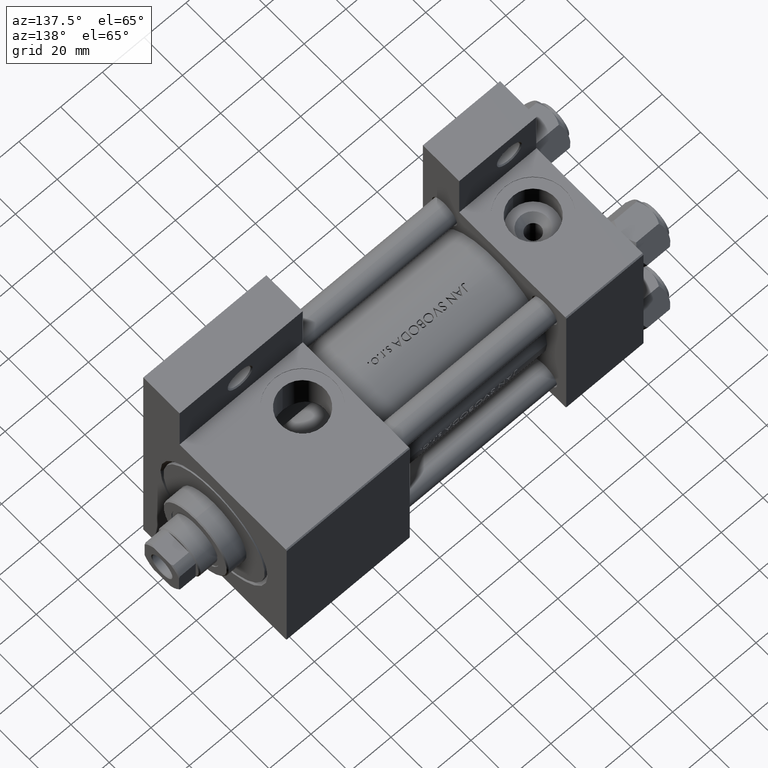
[diagram: clean part render]
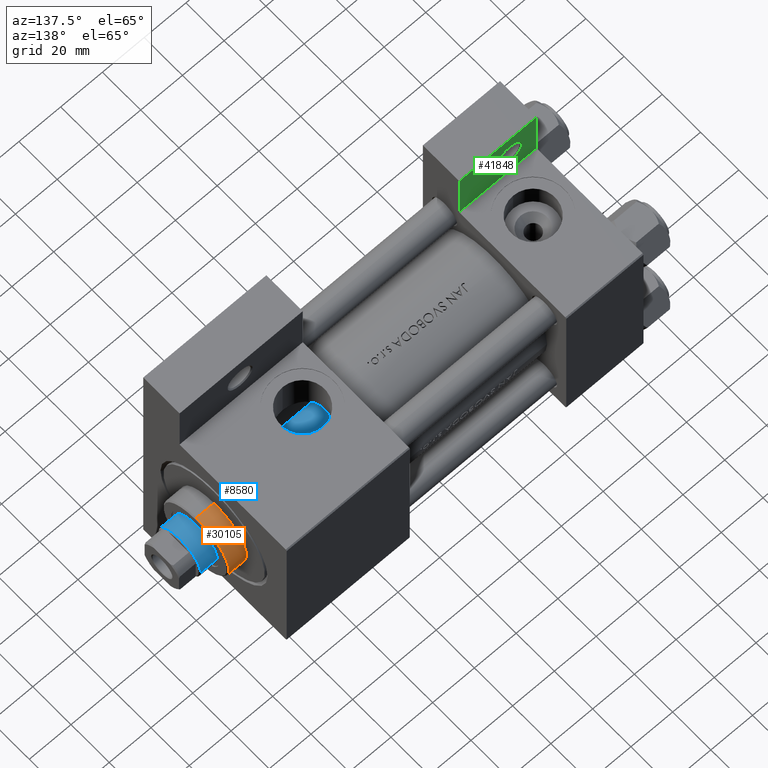
[diagram: same view with three faces highlighted in distinct colors, each labeled with its STEP entity id]
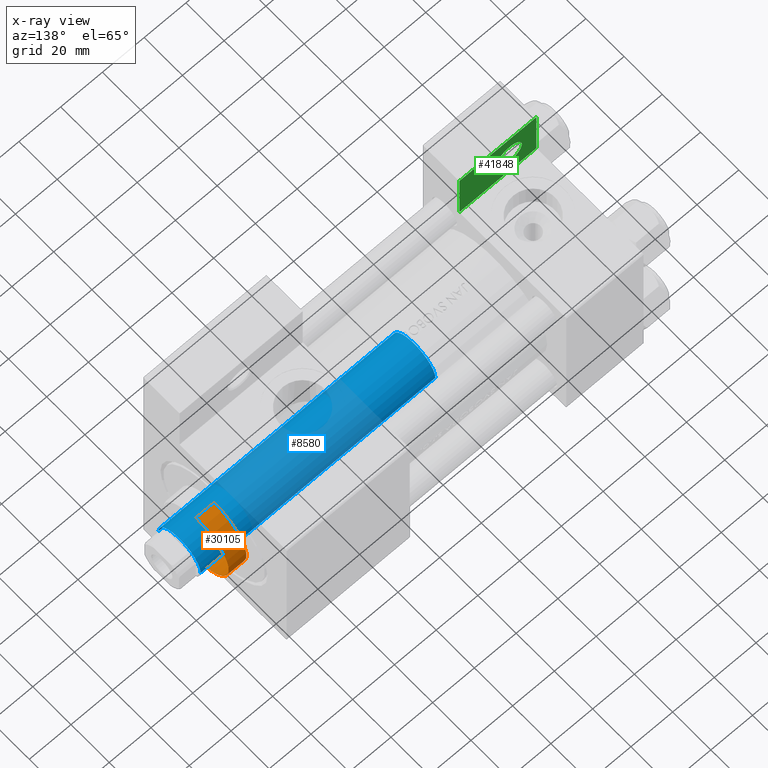
[diagram: x-ray of the same camera — body ghosted, the three highlighted faces saturated]
A machine part, auxiliary view with three faces highlighted in distinct colors.
The next image is the same camera in x-ray (body ghosted, the three faces saturated) — at least one of them is partly hidden behind the body in this view.
Their STEP definitions:

[orange] entity #30105 — the highlighted cylindrical surface (partial cylindrical patch) has radius 17 mm, axis along (-1, -0, 0).
#283 = DIRECTION ( 'NONE',  ( 1.000000000000000000, 0.000000000000000000, 0.000000000000000000 ) ) ;
#295 = DIRECTION ( 'NONE',  ( -0.000000000000000000, -0.000000000000000000, -1.000000000000000000 ) ) ;
#595 = VERTEX_POINT ( 'NONE', #13985 ) ;
#631 = LINE ( 'NONE', #42472, #10702 ) ;
#929 = ORIENTED_EDGE ( 'NONE', *, *, #1501, .T. ) ;
#1501 = EDGE_CURVE ( 'NONE', #595, #21624, #13839, .T. ) ;
#2821 = CYLINDRICAL_SURFACE ( 'NONE', #40736, 17.00000000000000000 ) ;
#3526 = AXIS2_PLACEMENT_3D ( 'NONE', #13238, #16213, #32124 ) ;
#3794 = DIRECTION ( 'NONE',  ( 0.000000000000000000, 0.000000000000000000, 1.000000000000000000 ) ) ;
#3804 = EDGE_CURVE ( 'NONE', #45799, #10827, #44907, .T. ) ;
#6409 = EDGE_LOOP ( 'NONE', ( #22939, #32596, #929, #41500 ) ) ;
#8034 = CARTESIAN_POINT ( 'NONE',  ( -17.00000000000000000, 0.000000000000000000, 37.19999999999999574 ) ) ;
#9676 = EDGE_CURVE ( 'NONE', #45799, #21624, #22557, .T. ) ;
#10702 = VECTOR ( 'NONE', #20069, 1000.000000000000000 ) ;
#10827 = VERTEX_POINT ( 'NONE', #14274 ) ;
#11050 = CARTESIAN_POINT ( 'NONE',  ( 0.000000000000000000, 0.000000000000000000, 37.69999999999999574 ) ) ;
#13238 = CARTESIAN_POINT ( 'NONE',  ( 0.000000000000000000, 0.000000000000000000, 37.19999999999999574 ) ) ;
#13839 = CIRCLE ( 'NONE', #17810, 17.00000000000000000 ) ;
#13985 = CARTESIAN_POINT ( 'NONE',  ( 17.00000000000000000, 2.081899558550500280E-15, 28.69999999999999929 ) ) ;
#14274 = CARTESIAN_POINT ( 'NONE',  ( 17.00000000000000000, 2.081899558550500280E-15, 37.19999999999999574 ) ) ;
#15345 = CARTESIAN_POINT ( 'NONE',  ( -17.00000000000000000, 0.000000000000000000, 37.69999999999999574 ) ) ;
#16213 = DIRECTION ( 'NONE',  ( 0.000000000000000000, 0.000000000000000000, -1.000000000000000000 ) ) ;
#17810 = AXIS2_PLACEMENT_3D ( 'NONE', #19238, #3794, #283 ) ;
#18517 = DIRECTION ( 'NONE',  ( -1.000000000000000000, 0.000000000000000000, 0.000000000000000000 ) ) ;
#19238 = CARTESIAN_POINT ( 'NONE',  ( 0.000000000000000000, 0.000000000000000000, 28.69999999999999929 ) ) ;
#20069 = DIRECTION ( 'NONE',  ( -0.000000000000000000, -0.000000000000000000, -1.000000000000000000 ) ) ;
#21517 = FACE_OUTER_BOUND ( 'NONE', #6409, .T. ) ;
#21624 = VERTEX_POINT ( 'NONE', #34362 ) ;
#22557 = LINE ( 'NONE', #15345, #41885 ) ;
#22939 = ORIENTED_EDGE ( 'NONE', *, *, #3804, .T. ) ;
#30105 = ADVANCED_FACE ( 'NONE', ( #21517 ), #2821, .T. ) ;
#32124 = DIRECTION ( 'NONE',  ( 1.000000000000000000, 0.000000000000000000, 0.000000000000000000 ) ) ;
#32596 = ORIENTED_EDGE ( 'NONE', *, *, #38100, .T. ) ;
#34362 = CARTESIAN_POINT ( 'NONE',  ( -17.00000000000000000, 0.000000000000000000, 28.69999999999999929 ) ) ;
#38100 = EDGE_CURVE ( 'NONE', #10827, #595, #631, .T. ) ;
#40736 = AXIS2_PLACEMENT_3D ( 'NONE', #11050, #295, #18517 ) ;
#41500 = ORIENTED_EDGE ( 'NONE', *, *, #9676, .F. ) ;
#41885 = VECTOR ( 'NONE', #49193, 1000.000000000000000 ) ;
#42472 = CARTESIAN_POINT ( 'NONE',  ( 17.00000000000000000, 2.081899558550500280E-15, 37.69999999999999574 ) ) ;
#44907 = CIRCLE ( 'NONE', #3526, 17.00000000000000000 ) ;
#45799 = VERTEX_POINT ( 'NONE', #8034 ) ;
#49193 = DIRECTION ( 'NONE',  ( -0.000000000000000000, -0.000000000000000000, -1.000000000000000000 ) ) ;

[blue] entity #8580 — the highlighted cylindrical surface (edge-blend (fillet) strip) has radius 11 mm, axis along (-1, 0, 0).
#236 = CARTESIAN_POINT ( 'NONE',  ( 11.00000000000000000, 1.347111479062088405E-15, 38.00000000000000000 ) ) ;
#696 = ORIENTED_EDGE ( 'NONE', *, *, #30148, .T. ) ;
#2108 = CARTESIAN_POINT ( 'NONE',  ( 0.000000000000000000, 0.000000000000000000, 151.0000000000000000 ) ) ;
#2613 = VERTEX_POINT ( 'NONE', #236 ) ;
#3066 = LINE ( 'NONE', #48874, #12942 ) ;
#5335 = CARTESIAN_POINT ( 'NONE',  ( -11.00000000000000000, 0.000000000000000000, 38.00000000000000000 ) ) ;
#8580 = ADVANCED_FACE ( 'NONE', ( #17560 ), #20795, .T. ) ;
#9294 = DIRECTION ( 'NONE',  ( 1.000000000000000000, 0.000000000000000000, 0.000000000000000000 ) ) ;
#12942 = VECTOR ( 'NONE', #45875, 1000.000000000000000 ) ;
#13248 = CARTESIAN_POINT ( 'NONE',  ( 11.00000000000000000, 1.347111479062088405E-15, 150.5000000000000568 ) ) ;
#16529 = DIRECTION ( 'NONE',  ( 0.000000000000000000, 0.000000000000000000, 1.000000000000000000 ) ) ;
#17560 = FACE_OUTER_BOUND ( 'NONE', #22091, .T. ) ;
#20746 = VECTOR ( 'NONE', #22771, 1000.000000000000000 ) ;
#20795 = CYLINDRICAL_SURFACE ( 'NONE', #23590, 11.00000000000000000 ) ;
#21466 = EDGE_CURVE ( 'NONE', #35436, #2613, #21488, .T. ) ;
#21488 = CIRCLE ( 'NONE', #27857, 11.00000000000000000 ) ;
#22091 = EDGE_LOOP ( 'NONE', ( #38740, #27933, #696, #43724 ) ) ;
#22771 = DIRECTION ( 'NONE',  ( -0.000000000000000000, -0.000000000000000000, -1.000000000000000000 ) ) ;
#23423 = EDGE_CURVE ( 'NONE', #48427, #2613, #38453, .T. ) ;
#23590 = AXIS2_PLACEMENT_3D ( 'NONE', #2108, #32237, #35973 ) ;
#24209 = VERTEX_POINT ( 'NONE', #47544 ) ;
#26594 = DIRECTION ( 'NONE',  ( 0.000000000000000000, 0.000000000000000000, -1.000000000000000000 ) ) ;
#27857 = AXIS2_PLACEMENT_3D ( 'NONE', #42905, #16529, #9294 ) ;
#27933 = ORIENTED_EDGE ( 'NONE', *, *, #46361, .T. ) ;
#30148 = EDGE_CURVE ( 'NONE', #24209, #35436, #3066, .T. ) ;
#32237 = DIRECTION ( 'NONE',  ( -0.000000000000000000, -0.000000000000000000, -1.000000000000000000 ) ) ;
#33078 = AXIS2_PLACEMENT_3D ( 'NONE', #48527, #26594, #44791 ) ;
#33964 = CARTESIAN_POINT ( 'NONE',  ( 11.00000000000000000, 1.347111479062088405E-15, 151.0000000000000000 ) ) ;
#35436 = VERTEX_POINT ( 'NONE', #5335 ) ;
#35973 = DIRECTION ( 'NONE',  ( -1.000000000000000000, 0.000000000000000000, 0.000000000000000000 ) ) ;
#38453 = LINE ( 'NONE', #33964, #20746 ) ;
#38740 = ORIENTED_EDGE ( 'NONE', *, *, #23423, .F. ) ;
#42905 = CARTESIAN_POINT ( 'NONE',  ( 0.000000000000000000, 0.000000000000000000, 38.00000000000000000 ) ) ;
#43724 = ORIENTED_EDGE ( 'NONE', *, *, #21466, .T. ) ;
#44791 = DIRECTION ( 'NONE',  ( 1.000000000000000000, 0.000000000000000000, 0.000000000000000000 ) ) ;
#45798 = CIRCLE ( 'NONE', #33078, 11.00000000000000000 ) ;
#45875 = DIRECTION ( 'NONE',  ( -0.000000000000000000, -0.000000000000000000, -1.000000000000000000 ) ) ;
#46361 = EDGE_CURVE ( 'NONE', #48427, #24209, #45798, .T. ) ;
#47544 = CARTESIAN_POINT ( 'NONE',  ( -11.00000000000000000, 0.000000000000000000, 150.5000000000000568 ) ) ;
#48427 = VERTEX_POINT ( 'NONE', #13248 ) ;
#48527 = CARTESIAN_POINT ( 'NONE',  ( 0.000000000000000000, 0.000000000000000000, 150.5000000000000568 ) ) ;
#48874 = CARTESIAN_POINT ( 'NONE',  ( -11.00000000000000000, 0.000000000000000000, 151.0000000000000000 ) ) ;

[green] entity #41848 — the highlighted planar face has unit normal (0, -1, 0).
#1896 = EDGE_CURVE ( 'NONE', #40793, #32571, #5479, .T. ) ;
#2379 = EDGE_LOOP ( 'NONE', ( #35378, #4694, #17472, #7262 ) ) ;
#2925 = VERTEX_POINT ( 'NONE', #27330 ) ;
#4055 = CARTESIAN_POINT ( 'NONE',  ( 37.00000000000000000, -37.50000000000000000, -18.50000000000000355 ) ) ;
#4249 = EDGE_CURVE ( 'NONE', #32571, #2925, #13175, .T. ) ;
#4694 = ORIENTED_EDGE ( 'NONE', *, *, #5326, .T. ) ;
#4921 = CARTESIAN_POINT ( 'NONE',  ( 3.977209754999747208E-16, -63.50000000000000000, -18.50000000000000355 ) ) ;
#5326 = EDGE_CURVE ( 'NONE', #9321, #40793, #41491, .T. ) ;
#5479 = LINE ( 'NONE', #46807, #48011 ) ;
#6984 = DIRECTION ( 'NONE',  ( -1.000000000000000000, 0.000000000000000000, -0.000000000000000000 ) ) ;
#7262 = ORIENTED_EDGE ( 'NONE', *, *, #4249, .T. ) ;
#7418 = CARTESIAN_POINT ( 'NONE',  ( 18.99950000000001893, -51.00000000000000711, -18.50000000000000000 ) ) ;
#8150 = VERTEX_POINT ( 'NONE', #7418 ) ;
#8682 = LINE ( 'NONE', #42284, #11655 ) ;
#8721 = DIRECTION ( 'NONE',  ( 4.278042683914906889E-17, -1.000000000000000000, 0.000000000000000000 ) ) ;
#9321 = VERTEX_POINT ( 'NONE', #4055 ) ;
#11655 = VECTOR ( 'NONE', #39549, 1000.000000000000000 ) ;
#11920 = EDGE_CURVE ( 'NONE', #8150, #29565, #22087, .T. ) ;
#12074 = AXIS2_PLACEMENT_3D ( 'NONE', #25286, #21549, #21307 ) ;
#13175 = LINE ( 'NONE', #4921, #23447 ) ;
#15351 = CARTESIAN_POINT ( 'NONE',  ( -7.145701223179000102E-16, -37.50000000000001421, -18.49999999999999645 ) ) ;
#17472 = ORIENTED_EDGE ( 'NONE', *, *, #1896, .T. ) ;
#19286 = CARTESIAN_POINT ( 'NONE',  ( 12.99999999999999822, -51.00000000000000711, -18.50000000000000000 ) ) ;
#20349 = CARTESIAN_POINT ( 'NONE',  ( 7.000499999999975742, -51.00000000000000711, -18.50000000000000000 ) ) ;
#21242 = ORIENTED_EDGE ( 'NONE', *, *, #25499, .T. ) ;
#21307 = DIRECTION ( 'NONE',  ( -1.000000000000000000, 0.000000000000000000, 0.000000000000000000 ) ) ;
#21549 = DIRECTION ( 'NONE',  ( 0.000000000000000000, 0.000000000000000000, -1.000000000000000000 ) ) ;
#22087 = CIRCLE ( 'NONE', #26059, 5.999500000000022482 ) ;
#23262 = DIRECTION ( 'NONE',  ( -1.000000000000000000, 0.000000000000000000, 0.000000000000000000 ) ) ;
#23447 = VECTOR ( 'NONE', #47505, 1000.000000000000000 ) ;
#25286 = CARTESIAN_POINT ( 'NONE',  ( 12.99999999999999822, -51.00000000000000711, -18.50000000000000000 ) ) ;
#25499 = EDGE_CURVE ( 'NONE', #29565, #8150, #45459, .T. ) ;
#26059 = AXIS2_PLACEMENT_3D ( 'NONE', #19286, #34450, #23262 ) ;
#27330 = CARTESIAN_POINT ( 'NONE',  ( 37.00000000000000000, -63.50000000000000000, -18.50000000000000355 ) ) ;
#27632 = ORIENTED_EDGE ( 'NONE', *, *, #11920, .T. ) ;
#28799 = CARTESIAN_POINT ( 'NONE',  ( 3.977209754999747208E-16, -63.50000000000000000, -18.50000000000000355 ) ) ;
#29565 = VERTEX_POINT ( 'NONE', #20349 ) ;
#30521 = DIRECTION ( 'NONE',  ( -1.000000000000000000, 0.000000000000000000, 0.000000000000000000 ) ) ;
#30613 = VECTOR ( 'NONE', #30521, 1000.000000000000000 ) ;
#31100 = CARTESIAN_POINT ( 'NONE',  ( -7.145701223179004046E-16, -37.50000000000000711, -18.50000000000000355 ) ) ;
#32571 = VERTEX_POINT ( 'NONE', #28799 ) ;
#33618 = CARTESIAN_POINT ( 'NONE',  ( 0.000000000000000000, 0.000000000000000000, -18.50000000000000000 ) ) ;
#33859 = FACE_BOUND ( 'NONE', #38677, .T. ) ;
#34450 = DIRECTION ( 'NONE',  ( 0.000000000000000000, 0.000000000000000000, -1.000000000000000000 ) ) ;
#35378 = ORIENTED_EDGE ( 'NONE', *, *, #47384, .T. ) ;
#37113 = FACE_OUTER_BOUND ( 'NONE', #2379, .T. ) ;
#38677 = EDGE_LOOP ( 'NONE', ( #27632, #21242 ) ) ;
#39549 = DIRECTION ( 'NONE',  ( -0.000000000000000000, 1.000000000000000000, 0.000000000000000000 ) ) ;
#40793 = VERTEX_POINT ( 'NONE', #31100 ) ;
#41102 = PLANE ( 'NONE',  #42581 ) ;
#41491 = LINE ( 'NONE', #15351, #30613 ) ;
#41848 = ADVANCED_FACE ( 'NONE', ( #33859, #37113 ), #41102, .F. ) ;
#42284 = CARTESIAN_POINT ( 'NONE',  ( 37.00000000000000000, -63.49999999999998579, -18.50000000000000355 ) ) ;
#42581 = AXIS2_PLACEMENT_3D ( 'NONE', #33618, #49052, #6984 ) ;
#45459 = CIRCLE ( 'NONE', #12074, 5.999500000000022482 ) ;
#46807 = CARTESIAN_POINT ( 'NONE',  ( 3.977209754999744250E-16, -63.49999999999998579, -18.50000000000000355 ) ) ;
#47384 = EDGE_CURVE ( 'NONE', #2925, #9321, #8682, .T. ) ;
#47505 = DIRECTION ( 'NONE',  ( 1.000000000000000000, 0.000000000000000000, 0.000000000000000000 ) ) ;
#48011 = VECTOR ( 'NONE', #8721, 1000.000000000000000 ) ;
#49052 = DIRECTION ( 'NONE',  ( 0.000000000000000000, 0.000000000000000000, -1.000000000000000000 ) ) ;